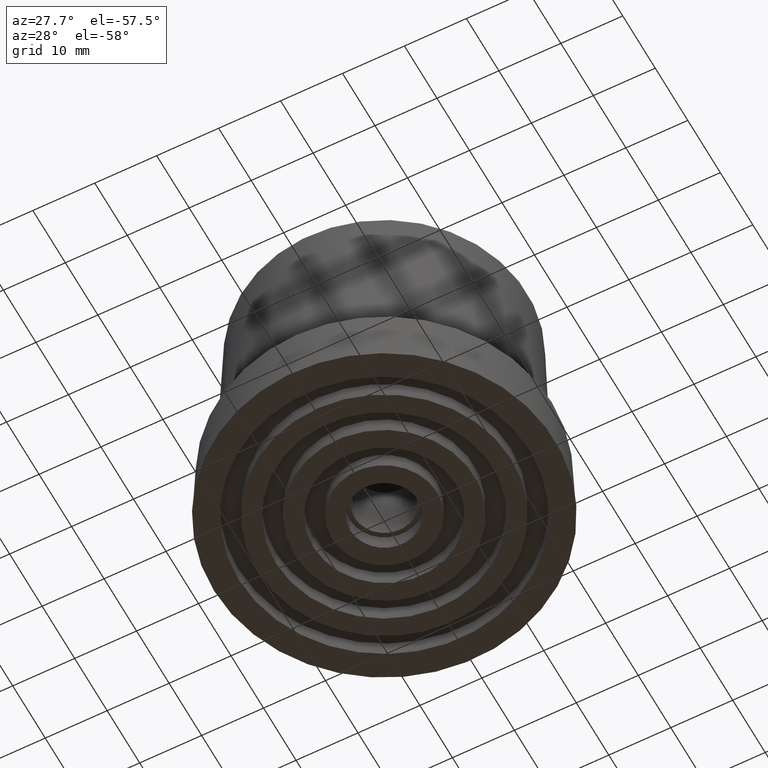
[diagram: clean part render]
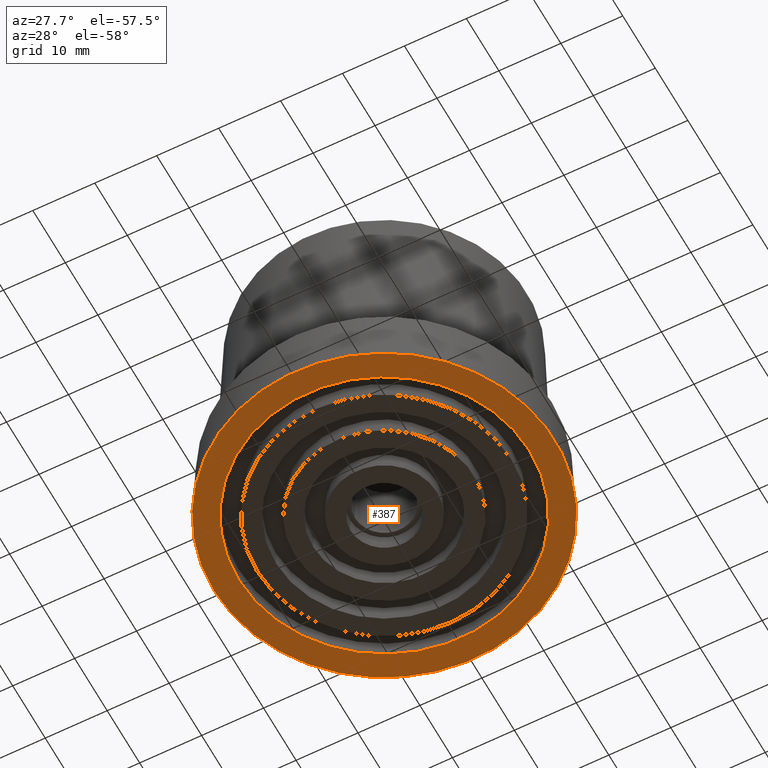
[diagram: same view with one face highlighted and labeled with its STEP entity id]
A machine part, auxiliary view. The second image highlights one B-rep face of the part: STEP entity #387.
In plain terms, the highlighted planar face has unit normal (0, 0, 1).
Its self-contained STEP definition (entity closure, byte-faithful):
#21=PLANE('',#441);
#47=FACE_BOUND('',#131,.T.);
#82=FACE_OUTER_BOUND('',#130,.T.);
#130=EDGE_LOOP('',(#310));
#131=EDGE_LOOP('',(#311));
#194=CIRCLE('',#439,23.5);
#195=CIRCLE('',#442,27.5);
#230=VERTEX_POINT('',#675);
#231=VERTEX_POINT('',#679);
#266=EDGE_CURVE('',#230,#230,#194,.T.);
#267=EDGE_CURVE('',#231,#231,#195,.T.);
#310=ORIENTED_EDGE('',*,*,#267,.F.);
#311=ORIENTED_EDGE('',*,*,#266,.T.);
#387=ADVANCED_FACE('',(#82,#47),#21,.F.);
#439=AXIS2_PLACEMENT_3D('',#676,#538,#539);
#441=AXIS2_PLACEMENT_3D('',#678,#542,#543);
#442=AXIS2_PLACEMENT_3D('',#680,#544,#545);
#538=DIRECTION('center_axis',(0.,0.,1.));
#539=DIRECTION('ref_axis',(1.,0.,0.));
#542=DIRECTION('center_axis',(0.,0.,1.));
#543=DIRECTION('ref_axis',(1.,0.,0.));
#544=DIRECTION('center_axis',(0.,0.,1.));
#545=DIRECTION('ref_axis',(-1.,0.,0.));
#675=CARTESIAN_POINT('',(-23.5,2.87791997799628E-15,0.));
#676=CARTESIAN_POINT('Origin',(0.,0.,0.));
#678=CARTESIAN_POINT('Origin',(0.,0.,0.));
#679=CARTESIAN_POINT('',(-27.5,0.,0.));
#680=CARTESIAN_POINT('Origin',(0.,0.,0.));